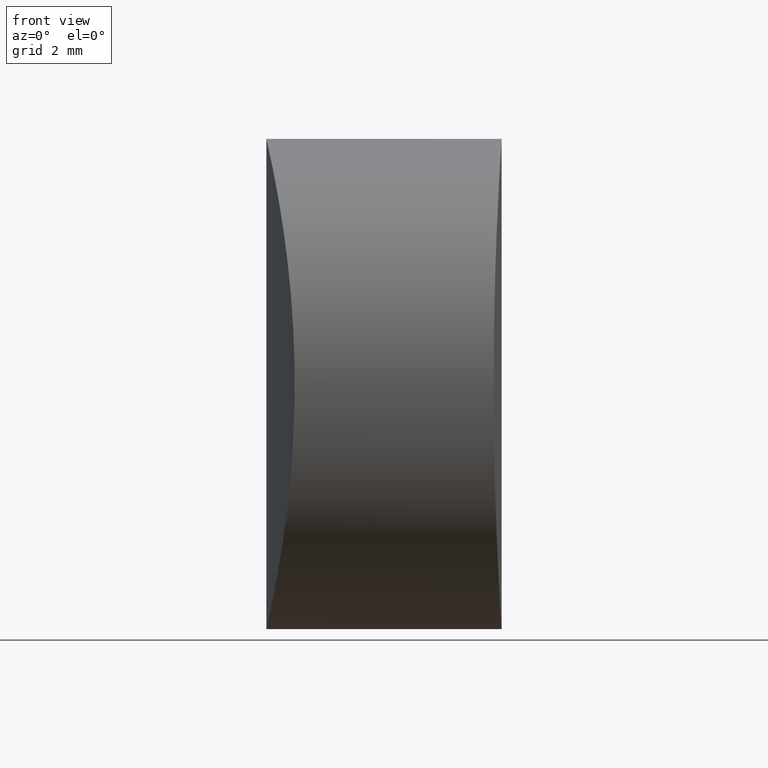
[diagram: clean part render]
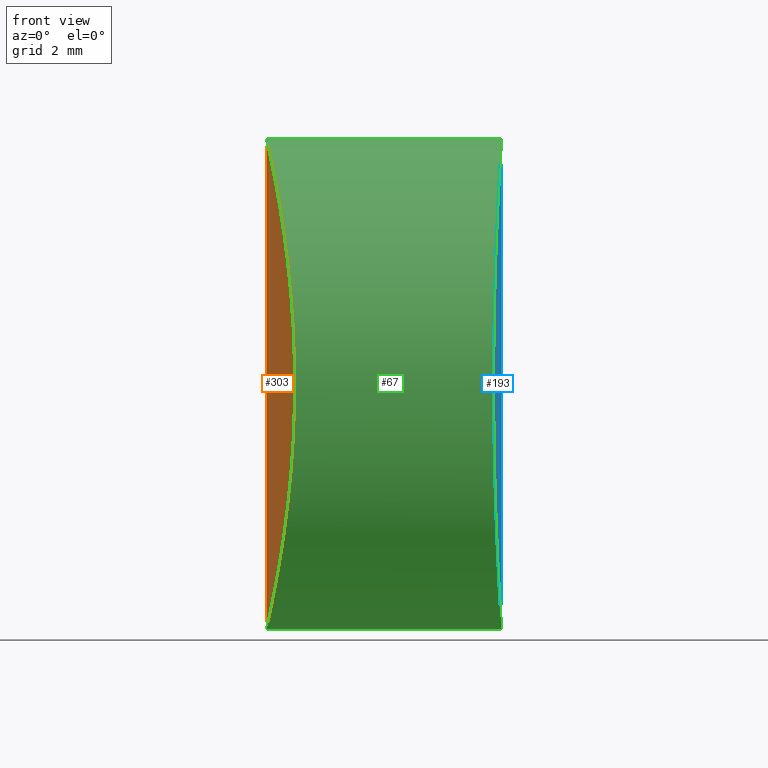
[diagram: same view with three faces highlighted in distinct colors, each labeled with its STEP entity id]
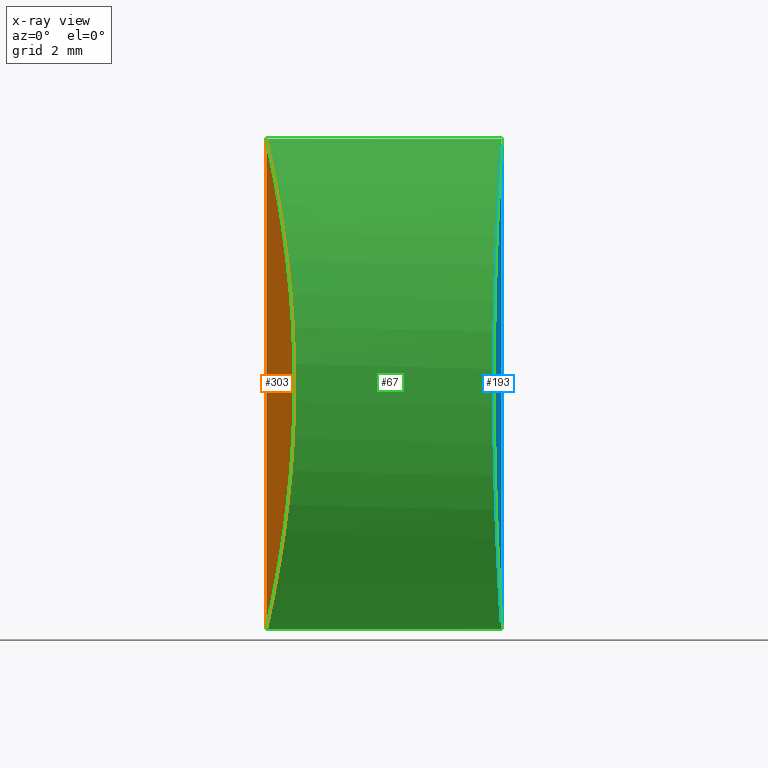
[diagram: x-ray of the same camera — body ghosted, the three highlighted faces saturated]
A machine part, front view with three faces highlighted in distinct colors.
The next image is the same camera in x-ray (body ghosted, the three faces saturated) — at least one of them is partly hidden behind the body in this view.
Their STEP definitions:

[orange] entity #303 — the highlighted cylindrical surface (partial cylindrical patch) has radius 27.4 mm, axis along (-0, -0, -1).
#2 = CARTESIAN_POINT ( 'NONE',  ( 0.3116411693376339165, -4.131036950731554747, 1.542363636356262502 ) ) ;
#30 = CARTESIAN_POINT ( 'NONE',  ( 0.1384884386718820970, -2.777054641262129309, 11.86389697547441280 ) ) ;
#37 = CARTESIAN_POINT ( 'NONE',  ( 0.03615019430483690926, -1.421204401658103356, 0.1603132345661746616 ) ) ;
#40 = CARTESIAN_POINT ( 'NONE',  ( 0.009376720350413049118, -0.8210657172601146803, 0.04075056890858338304 ) ) ;
#47 = CARTESIAN_POINT ( 'NONE',  ( 0.5811138763522566419, -5.615434840411457351, 9.024319395615693296 ) ) ;
#55 = DIRECTION ( 'NONE',  ( -0.000000000000000000, -0.000000000000000000, -1.000000000000000000 ) ) ;
#62 = CARTESIAN_POINT ( 'NONE',  ( 0.6465125408148366670, -5.917319207013137294, 4.227689888689410758 ) ) ;
#66 = CARTESIAN_POINT ( 'NONE',  ( 0.1382062019170031408, -2.774625501623393831, 0.6347149437391172988 ) ) ;
#70 = AXIS2_PLACEMENT_3D ( 'NONE', #337, #111, #131 ) ;
#72 = CARTESIAN_POINT ( 'NONE',  ( 0.7126846332004072027, -6.209194917548074066, 5.426395169123278350 ) ) ;
#82 = CARTESIAN_POINT ( 'NONE',  ( -4.184501590779804551E-15, 0.000000000000000000, 12.50000000000000000 ) ) ;
#85 = CARTESIAN_POINT ( 'NONE',  ( 0.4054701780888513851, -4.705317217891149539, 2.116321698580379884 ) ) ;
#111 = DIRECTION ( 'NONE',  ( -0.000000000000000000, -0.000000000000000000, -1.000000000000000000 ) ) ;
#114 = EDGE_CURVE ( 'NONE', #137, #269, #122, .T. ) ;
#115 = CARTESIAN_POINT ( 'NONE',  ( 0.1775536361305056765, -3.132928845796059569, 0.8265769022523796750 ) ) ;
#122 = B_SPLINE_CURVE_WITH_KNOTS ( 'NONE', 3,
 ( #274, #323, #40, #37, #140, #244, #248, #66, #115, #216, #2, #85, #187, #218, #191, #298, #62, #164, #246, #72, #201, #231, #177, #283, #185, #150, #160, #47, #133, #136, #294, #292, #128, #213, #30, #267, #339, #311, #207, #138, #172, #82 ),
 .UNSPECIFIED., .F., .F.,
 ( 4, 2, 2, 2, 2, 2, 2, 2, 2, 2, 2, 2, 2, 2, 2, 2, 2, 2, 2, 2, 4 ),
 ( 0.009795806338723013831, 0.01102026492403633193, 0.01163249421669299011, 0.01224472350934965002, 0.01346918209466296638, 0.01469364067997628448, 0.01591809926528960084, 0.01714255785060291373, 0.01775478714325957191, 0.01836701643591622662, 0.01959147502122954299, 0.02081593360654285588, 0.02142816289919951406, 0.02204039219185616877, 0.02326485077716947819, 0.02448930936248278761, 0.02571376794779609704, 0.02693822653310940646, 0.02755045582576606117, 0.02816268511842271588, 0.02938714370373602530 ),
 .UNSPECIFIED. ) ;
#125 = EDGE_LOOP ( 'NONE', ( #240, #158 ) ) ;
#128 = CARTESIAN_POINT ( 'NONE',  ( 0.2654822108114512358, -3.820490956223506984, 11.21335405443510602 ) ) ;
#131 = DIRECTION ( 'NONE',  ( -1.000000000000000000, 0.000000000000000000, 0.000000000000000000 ) ) ;
#133 = CARTESIAN_POINT ( 'NONE',  ( 0.5411515278856160460, -5.423603225973796071, 9.382616842158270742 ) ) ;
#136 = CARTESIAN_POINT ( 'NONE',  ( 0.4536428522592524382, -4.970618640289727885, 10.06073622353625652 ) ) ;
#137 = VERTEX_POINT ( 'NONE', #263 ) ;
#138 = CARTESIAN_POINT ( 'NONE',  ( 0.009382662421028536634, -0.8232961281008871479, 12.45923874467907311 ) ) ;
#140 = CARTESIAN_POINT ( 'NONE',  ( 0.04719495323314685381, -1.619526017995706946, 0.2099804113062224420 ) ) ;
#150 = CARTESIAN_POINT ( 'NONE',  ( 0.6472677964665120021, -5.920731362028623046, 8.262371952964885580 ) ) ;
#158 = ORIENTED_EDGE ( 'NONE', *, *, #223, .T. ) ;
#160 = CARTESIAN_POINT ( 'NONE',  ( 0.6318335799774714712, -5.850786857338206914, 8.457409633246081526 ) ) ;
#164 = CARTESIAN_POINT ( 'NONE',  ( 0.6732574735928422704, -6.036968755394013897, 4.619229313976951801 ) ) ;
#172 = CARTESIAN_POINT ( 'NONE',  ( -4.206789132538483423E-15, -0.4141460509851961347, 12.50000000000000355 ) ) ;
#177 = CARTESIAN_POINT ( 'NONE',  ( 0.7127111559373111582, -6.209291371695559114, 7.070753261049171456 ) ) ;
#181 = CARTESIAN_POINT ( 'NONE',  ( -3.469446951953614189E-15, 0.000000000000000000, 12.50000000000000000 ) ) ;
#182 = VECTOR ( 'NONE', #55, 1000.000000000000000 ) ;
#185 = CARTESIAN_POINT ( 'NONE',  ( 0.6739645833130989416, -6.040096946348168849, 7.869237356629506408 ) ) ;
#187 = CARTESIAN_POINT ( 'NONE',  ( 0.4523168166194615480, -4.963519174644203780, 2.429732886834358840 ) ) ;
#191 = CARTESIAN_POINT ( 'NONE',  ( 0.5807977302953476473, -5.613905181690581614, 3.472973952386090080 ) ) ;
#201 = CARTESIAN_POINT ( 'NONE',  ( 0.7223349204684399449, -6.249974872350121835, 5.835505487156897431 ) ) ;
#205 = FACE_OUTER_BOUND ( 'NONE', #125, .T. ) ;
#207 = CARTESIAN_POINT ( 'NONE',  ( 0.03657481214563918642, -1.429648785805302413, 12.33778243081895276 ) ) ;
#213 = CARTESIAN_POINT ( 'NONE',  ( 0.1781624005736298921, -3.138433448208225229, 11.67044925328434424 ) ) ;
#216 = CARTESIAN_POINT ( 'NONE',  ( 0.2641763700242353297, -3.811024154924946394, 1.279602013864278742 ) ) ;
#218 = CARTESIAN_POINT ( 'NONE',  ( 0.5405069973740791456, -5.420496950538773895, 3.111660276165837402 ) ) ;
#223 = EDGE_CURVE ( 'NONE', #269, #137, #309, .T. ) ;
#231 = CARTESIAN_POINT ( 'NONE',  ( 0.7223466888148194487, -6.250025104659654218, 6.663736386252214317 ) ) ;
#240 = ORIENTED_EDGE ( 'NONE', *, *, #114, .T. ) ;
#244 = CARTESIAN_POINT ( 'NONE',  ( 0.07330936728784241685, -2.012656829526802582, 0.3293654359242282892 ) ) ;
#246 = CARTESIAN_POINT ( 'NONE',  ( 0.6848109734009431016, -6.087725439428267826, 4.820111688094120161 ) ) ;
#248 = CARTESIAN_POINT ( 'NONE',  ( 0.08842649433608144871, -2.207700066943129702, 0.3993223769591673911 ) ) ;
#263 = CARTESIAN_POINT ( 'NONE',  ( -4.794358695361155814E-15, -2.552071241603616280E-31, 3.064935224722401656E-16 ) ) ;
#267 = CARTESIAN_POINT ( 'NONE',  ( 0.08893686385253159188, -2.213897388230191332, 12.09829045853030749 ) ) ;
#269 = VERTEX_POINT ( 'NONE', #341 ) ;
#274 = CARTESIAN_POINT ( 'NONE',  ( -4.794358695361155814E-15, -2.552071241603616280E-31, 3.064935224722401656E-16 ) ) ;
#283 = CARTESIAN_POINT ( 'NONE',  ( 0.6852746003841665434, -6.089755177294259525, 7.670911923432183421 ) ) ;
#292 = CARTESIAN_POINT ( 'NONE',  ( 0.3120842509177479962, -4.133930065265925435, 10.95509783975771789 ) ) ;
#294 = CARTESIAN_POINT ( 'NONE',  ( 0.4059196538580759905, -4.707885266223270193, 10.38075535299298480 ) ) ;
#298 = CARTESIAN_POINT ( 'NONE',  ( 0.6312815837660793461, -5.848256132854045219, 4.036015702614473177 ) ) ;
#303 = ADVANCED_FACE ( 'NONE', ( #205 ), #312, .T. ) ;
#309 = LINE ( 'NONE', #181, #182 ) ;
#311 = CARTESIAN_POINT ( 'NONE',  ( 0.04785635936420622877, -1.630567444252991161, 12.28702495686388296 ) ) ;
#312 = CYLINDRICAL_SURFACE ( 'NONE', #70, 27.40000000000000568 ) ;
#323 = CARTESIAN_POINT ( 'NONE',  ( -4.797912250603577483E-15, -0.4141244359800711483, -5.717472393966527289E-17 ) ) ;
#337 = CARTESIAN_POINT ( 'NONE',  ( 27.40000000000000213, 0.000000000000000000, 12.50000000000000000 ) ) ;
#339 = CARTESIAN_POINT ( 'NONE',  ( 0.07401813108629744231, -2.022183678113939287, 12.16736374511696361 ) ) ;
#341 = CARTESIAN_POINT ( 'NONE',  ( -4.184501590779804551E-15, 0.000000000000000000, 12.50000000000000000 ) ) ;

[blue] entity #193 — the highlighted cylindrical surface (partial cylindrical patch) has radius 96 mm, axis along (-0, -0, -1).
#8 = CARTESIAN_POINT ( 'NONE',  ( 5.911567105807118416, 4.129710508305659111, 1.541077639020869805 ) ) ;
#13 = AXIS2_PLACEMENT_3D ( 'NONE', #57, #234, #284 ) ;
#15 = CARTESIAN_POINT ( 'NONE',  ( 6.000000000000032863, -5.204170427930421283E-15, 12.50000000000000000 ) ) ;
#16 = CARTESIAN_POINT ( 'NONE',  ( 6.000000000000032863, -4.438766178463325818E-15, 0.000000000000000000 ) ) ;
#18 = CARTESIAN_POINT ( 'NONE',  ( 5.836178944746621688, -5.606794147255385496, 9.019141125846413587 ) ) ;
#19 = CARTESIAN_POINT ( 'NONE',  ( 5.987035242229683085, -1.628528162335888485, 0.2018665620749761913 ) ) ;
#20 = CARTESIAN_POINT ( 'NONE',  ( 5.806612813290890074, 6.090527116705958477, 7.667533264475713928 ) ) ;
#22 = CARTESIAN_POINT ( 'NONE',  ( 5.817174602415963847, -5.922212247244167393, 4.242029252911016179 ) ) ;
#23 = CARTESIAN_POINT ( 'NONE',  ( 5.924625625390090633, -3.818741430251576752, 1.285288746088208089 ) ) ;
#27 = CARTESIAN_POINT ( 'NONE',  ( 5.884874420424372587, -4.708922839733584276, 2.120290177468396653 ) ) ;
#43 = CARTESIAN_POINT ( 'NONE',  ( 6.000000000000032863, -5.204170427930421283E-15, 12.50000000000000000 ) ) ;
#49 = CARTESIAN_POINT ( 'NONE',  ( 5.821475028554874420, 5.852442620526291606, 8.453025596376225081 ) ) ;
#50 = EDGE_CURVE ( 'NONE', #265, #199, #84, .T. ) ;
#51 = CARTESIAN_POINT ( 'NONE',  ( 5.979198856566736886, -2.007962246959814401, 12.17221515464864012 ) ) ;
#53 = CARTESIAN_POINT ( 'NONE',  ( 5.836178944746623465, 5.606794147255378391, 3.480858874153593963 ) ) ;
#57 = CARTESIAN_POINT ( 'NONE',  ( -90.00000000000000000, 0.000000000000000000, 12.50000000000000000 ) ) ;
#59 = B_SPLINE_CURVE_WITH_KNOTS ( 'NONE', 3,
 ( #15, #228, #331, #334, #237, #51, #79, #101, #203, #73, #104, #152, #174, #259, #110, #18, #336, #320, #130, #314, #76, #288, #156, #154, #261, #22, #210, #316, #229, #264, #27, #149, #23, #127, #321, #102, #202, #232, #19, #235, #83, #239 ),
 .UNSPECIFIED., .F., .F.,
 ( 4, 2, 2, 2, 2, 2, 2, 2, 2, 2, 2, 2, 2, 2, 2, 2, 2, 2, 2, 2, 4 ),
 ( 0.01953217568338413979, 0.02075294466551232814, 0.02136332915657642578, 0.02197371364764051649, 0.02319448262976870484, 0.02441525161189689319, 0.02563602059402507807, 0.02624640508508917225, 0.02685678957615326989, 0.02807755855828145825, 0.02929832754040965354, 0.03051909652253784883, 0.03112948101360194647, 0.03173986550466604412, 0.03296063448679423247, 0.03418140346892242082, 0.03540217245105060917, 0.03601255694211470681, 0.03662294143317879752, 0.03784371041530699281, 0.03906447939743518116 ),
 .UNSPECIFIED. ) ;
#60 = ORIENTED_EDGE ( 'NONE', *, *, #50, .T. ) ;
#68 = CARTESIAN_POINT ( 'NONE',  ( 5.986607244030440533, 1.615473711900098808, 0.2089082601465505062 ) ) ;
#71 = CARTESIAN_POINT ( 'NONE',  ( 5.796333507372480653, 6.249998923542263718, 6.662802383870022993 ) ) ;
#73 = CARTESIAN_POINT ( 'NONE',  ( 5.925037275768167078, -3.808234963805516848, 11.22256866007617404 ) ) ;
#76 = CARTESIAN_POINT ( 'NONE',  ( 5.796333366913489549, -6.250001076415270695, 6.662769787189287030 ) ) ;
#77 = CARTESIAN_POINT ( 'NONE',  ( 5.949143905229992590, 3.129583509520057927, 11.66387015364975177 ) ) ;
#79 = CARTESIAN_POINT ( 'NONE',  ( 5.974905582907696022, -2.203018005822348080, 12.10244550841075650 ) ) ;
#83 = CARTESIAN_POINT ( 'NONE',  ( 6.000000000000033751, -0.4127902963935412006, 9.317362419797287706E-17 ) ) ;
#84 = B_SPLINE_CURVE_WITH_KNOTS ( 'NONE', 3,
 ( #147, #176, #308, #333, #68, #304, #93, #254, #197, #106, #8, #287, #196, #258, #260, #53, #124, #121, #103, #209, #233, #71, #335, #20, #206, #313, #49, #132, #222, #225, #305, #315, #129, #178, #77, #290, #167, #95, #169, #280, #279, #43 ),
 .UNSPECIFIED., .F., .F.,
 ( 4, 2, 2, 2, 2, 2, 2, 2, 2, 2, 2, 2, 2, 2, 2, 2, 2, 2, 2, 2, 4 ),
 ( 0.000000000000000000, 0.001220760980211511122, 0.001831141470317267225, 0.002441521960423023111, 0.003662282940634532715, 0.004883043920846042753, 0.006103804901057553224, 0.006714185391163309327, 0.007324565881269064563, 0.008545326861480576769, 0.009766087841692087240, 0.01098684882190359771, 0.01159722931200935642, 0.01220760980211511165, 0.01342837078232661865, 0.01464913176253812392, 0.01586989274274963266, 0.01648027323285538442, 0.01709065372296113619, 0.01831141470317263625, 0.01953217568338413979 ),
 .UNSPECIFIED. ) ;
#87 = ORIENTED_EDGE ( 'NONE', *, *, #227, .T. ) ;
#93 = CARTESIAN_POINT ( 'NONE',  ( 5.974905582907695134, 2.203018005822336978, 0.3975544915892444964 ) ) ;
#95 = CARTESIAN_POINT ( 'NONE',  ( 5.979448297765532772, 2.021566305979889400, 12.17800582869768178 ) ) ;
#100 = CARTESIAN_POINT ( 'NONE',  ( 6.000000000000032863, -5.204170427930421283E-15, 12.50000000000000000 ) ) ;
#101 = CARTESIAN_POINT ( 'NONE',  ( 5.960763360669401933, -2.770388991762482878, 11.86739013118188346 ) ) ;
#102 = CARTESIAN_POINT ( 'NONE',  ( 5.960222631026613094, -2.769148189137305316, 0.6432093591576675262 ) ) ;
#103 = CARTESIAN_POINT ( 'NONE',  ( 5.809324090560597398, 6.048136398072538888, 4.621482525096241467 ) ) ;
#104 = CARTESIAN_POINT ( 'NONE',  ( 5.911567105807118416, -4.129710508305667993, 10.95892236097913397 ) ) ;
#106 = CARTESIAN_POINT ( 'NONE',  ( 5.925037275768164413, 3.808234963805503082, 1.277431339923827291 ) ) ;
#107 = FACE_OUTER_BOUND ( 'NONE', #134, .T. ) ;
#110 = CARTESIAN_POINT ( 'NONE',  ( 5.847270737039256261, -5.413873622452944012, 9.379577540924559642 ) ) ;
#121 = CARTESIAN_POINT ( 'NONE',  ( 5.816925134056868174, 5.928009089340775084, 4.228443051414411791 ) ) ;
#124 = CARTESIAN_POINT ( 'NONE',  ( 5.831022604608366855, 5.693963033971735754, 3.664916629452011243 ) ) ;
#127 = CARTESIAN_POINT ( 'NONE',  ( 5.943178669587201313, -3.306903936655295695, 0.9425479427324706672 ) ) ;
#129 = CARTESIAN_POINT ( 'NONE',  ( 5.924625625390091521, 3.818741430251566094, 11.21471125391179413 ) ) ;
#130 = CARTESIAN_POINT ( 'NONE',  ( 5.809324090560596510, -6.048136398072547770, 7.878517474903756757 ) ) ;
#132 = CARTESIAN_POINT ( 'NONE',  ( 5.835638474226827022, 5.617387589916582158, 9.020393886077801682 ) ) ;
#134 = EDGE_LOOP ( 'NONE', ( #87, #60 ) ) ;
#147 = CARTESIAN_POINT ( 'NONE',  ( 6.000000000000032863, -4.438766178463325818E-15, 0.000000000000000000 ) ) ;
#149 = CARTESIAN_POINT ( 'NONE',  ( 5.911424642850639621, -4.133003739400670007, 1.543967953893780276 ) ) ;
#152 = CARTESIAN_POINT ( 'NONE',  ( 5.885016830392030052, -4.706034531278883826, 10.38300104942525870 ) ) ;
#154 = CARTESIAN_POINT ( 'NONE',  ( 5.806612813290883857, -6.090527116705967359, 4.832466735524288737 ) ) ;
#156 = CARTESIAN_POINT ( 'NONE',  ( 5.798999773165139260, -6.209505593986322403, 5.431327453033993002 ) ) ;
#167 = CARTESIAN_POINT ( 'NONE',  ( 5.965371937166968230, 2.585090990553882584, 11.94395955633633655 ) ) ;
#169 = CARTESIAN_POINT ( 'NONE',  ( 5.987035242229682197, 1.628528162335880713, 12.29813343792502600 ) ) ;
#174 = CARTESIAN_POINT ( 'NONE',  ( 5.871810116764509146, -4.964714265286644057, 10.06873762798265659 ) ) ;
#176 = CARTESIAN_POINT ( 'NONE',  ( 6.000000000000032863, 0.4127875906288794861, 3.811648262644350293E-17 ) ) ;
#178 = CARTESIAN_POINT ( 'NONE',  ( 5.943178669587195984, 3.306903936655284149, 11.55745205726753078 ) ) ;
#193 = ADVANCED_FACE ( 'NONE', ( #107 ), #243, .T. ) ;
#196 = CARTESIAN_POINT ( 'NONE',  ( 5.871810116764510035, 4.964714265286636952, 2.431262372017350071 ) ) ;
#197 = CARTESIAN_POINT ( 'NONE',  ( 5.949589200328775362, 3.129179155180217276, 0.8243820228928684379 ) ) ;
#199 = VERTEX_POINT ( 'NONE', #100 ) ;
#202 = CARTESIAN_POINT ( 'NONE',  ( 5.965371937166970007, -2.585090990553890578, 0.5560404436636666725 ) ) ;
#203 = CARTESIAN_POINT ( 'NONE',  ( 5.949589200328774474, -3.129179155180229266, 11.67561797710713023 ) ) ;
#206 = CARTESIAN_POINT ( 'NONE',  ( 5.809753105704046128, 6.041089017330381949, 7.865483799752884586 ) ) ;
#209 = CARTESIAN_POINT ( 'NONE',  ( 5.799000971098884349, 6.209504772456537758, 5.428980185016071935 ) ) ;
#210 = CARTESIAN_POINT ( 'NONE',  ( 5.821475028554870867, -5.852442620526301376, 4.046974403623774030 ) ) ;
#222 = CARTESIAN_POINT ( 'NONE',  ( 5.846826527566751253, 5.425615968170429682, 9.379182439852677078 ) ) ;
#225 = CARTESIAN_POINT ( 'NONE',  ( 5.871398397257435953, 4.972568088410991294, 10.05823554708279133 ) ) ;
#227 = EDGE_CURVE ( 'NONE', #199, #265, #59, .T. ) ;
#228 = CARTESIAN_POINT ( 'NONE',  ( 6.000000000000031974, -0.4127875906288890895, 12.49999999999999822 ) ) ;
#229 = CARTESIAN_POINT ( 'NONE',  ( 5.846826527566754805, -5.425615968170440340, 3.120817560147326475 ) ) ;
#232 = CARTESIAN_POINT ( 'NONE',  ( 5.979448297765534548, -2.021566305979894729, 0.3219941713023179997 ) ) ;
#233 = CARTESIAN_POINT ( 'NONE',  ( 5.796333366913491325, 6.250001076415261814, 5.837230212810717411 ) ) ;
#234 = DIRECTION ( 'NONE',  ( -0.000000000000000000, -0.000000000000000000, -1.000000000000000000 ) ) ;
#235 = CARTESIAN_POINT ( 'NONE',  ( 5.997338208213556676, -0.8210331944726780851, 0.04049707689561887064 ) ) ;
#237 = CARTESIAN_POINT ( 'NONE',  ( 5.986607244030440533, -1.615473711900106579, 12.29109173985344938 ) ) ;
#239 = CARTESIAN_POINT ( 'NONE',  ( 6.000000000000032863, -4.438766178463325818E-15, 0.000000000000000000 ) ) ;
#243 = CYLINDRICAL_SURFACE ( 'NONE', #13, 96.00000000000002842 ) ;
#254 = CARTESIAN_POINT ( 'NONE',  ( 5.960763360669400157, 2.770388991762471775, 0.6326098688181184260 ) ) ;
#258 = CARTESIAN_POINT ( 'NONE',  ( 5.853242027680242821, 5.307455462194799800, 2.943101495563196668 ) ) ;
#259 = CARTESIAN_POINT ( 'NONE',  ( 5.853242027680241044, -5.307455462194806906, 9.556898504436805553 ) ) ;
#260 = CARTESIAN_POINT ( 'NONE',  ( 5.847270737039256261, 5.413873622452935130, 3.120422459075444799 ) ) ;
#261 = CARTESIAN_POINT ( 'NONE',  ( 5.809753105704043463, -6.041089017330388167, 4.634516200247111861 ) ) ;
#264 = CARTESIAN_POINT ( 'NONE',  ( 5.871398397257441282, -4.972568088411003728, 2.441764452917210892 ) ) ;
#265 = VERTEX_POINT ( 'NONE', #16 ) ;
#279 = CARTESIAN_POINT ( 'NONE',  ( 6.000000000000031974, 0.4127848848819660188, 12.49999999999999645 ) ) ;
#280 = CARTESIAN_POINT ( 'NONE',  ( 5.997338208213556676, 0.8210331944726709796, 12.45950292310438279 ) ) ;
#284 = DIRECTION ( 'NONE',  ( -1.000000000000000000, 0.000000000000000000, 0.000000000000000000 ) ) ;
#287 = CARTESIAN_POINT ( 'NONE',  ( 5.885016830392030052, 4.706034531278874056, 2.116998950574742633 ) ) ;
#288 = CARTESIAN_POINT ( 'NONE',  ( 5.796333507372478877, -6.249998923542270823, 5.837197616129978783 ) ) ;
#290 = CARTESIAN_POINT ( 'NONE',  ( 5.960222631026611317, 2.769148189137295546, 11.85679064084233403 ) ) ;
#304 = CARTESIAN_POINT ( 'NONE',  ( 5.979198856566738662, 2.007962246959806851, 0.3277848453513630966 ) ) ;
#305 = CARTESIAN_POINT ( 'NONE',  ( 5.884874420424371699, 4.708922839733576282, 10.37970982253160201 ) ) ;
#308 = CARTESIAN_POINT ( 'NONE',  ( 5.997339634076558568, 0.8186593033643769779, 0.04049256479721155544 ) ) ;
#313 = CARTESIAN_POINT ( 'NONE',  ( 5.817174602415966511, 5.922212247244154959, 8.257970747088984709 ) ) ;
#314 = CARTESIAN_POINT ( 'NONE',  ( 5.799000971098883461, -6.209504772456546640, 7.071019814983928953 ) ) ;
#315 = CARTESIAN_POINT ( 'NONE',  ( 5.911424642850639621, 4.133003739400661125, 10.95603204610621795 ) ) ;
#316 = CARTESIAN_POINT ( 'NONE',  ( 5.835638474226824357, -5.617387589916591928, 3.479606113922200539 ) ) ;
#320 = CARTESIAN_POINT ( 'NONE',  ( 5.816925134056869950, -5.928009089340786630, 8.271556948585585545 ) ) ;
#321 = CARTESIAN_POINT ( 'NONE',  ( 5.949143905229994367, -3.129583509520069917, 0.8361298463502433442 ) ) ;
#331 = CARTESIAN_POINT ( 'NONE',  ( 5.997339634076555903, -0.8186593033643846384, 12.45950743520278614 ) ) ;
#333 = CARTESIAN_POINT ( 'NONE',  ( 5.989741562635338745, 1.417522383347145976, 0.1594703265302315487 ) ) ;
#334 = CARTESIAN_POINT ( 'NONE',  ( 5.989741562635338745, -1.417522383347154191, 12.34052967346976892 ) ) ;
#335 = CARTESIAN_POINT ( 'NONE',  ( 5.798999773165147253, 6.209505593986315297, 7.068672546966005221 ) ) ;
#336 = CARTESIAN_POINT ( 'NONE',  ( 5.831022604608365967, -5.693963033971745524, 8.835083370547991422 ) ) ;

[green] entity #67 — the highlighted cylindrical surface (partial cylindrical patch) has radius 6.25 mm, axis along (-1, 0, 0).
#2 = CARTESIAN_POINT ( 'NONE',  ( 0.3116411693376339165, -4.131036950731554747, 1.542363636356262502 ) ) ;
#9 = DIRECTION ( 'NONE',  ( 0.000000000000000000, 0.000000000000000000, 1.000000000000000000 ) ) ;
#11 = FACE_OUTER_BOUND ( 'NONE', #56, .T. ) ;
#15 = CARTESIAN_POINT ( 'NONE',  ( 6.000000000000032863, -5.204170427930421283E-15, 12.50000000000000000 ) ) ;
#16 = CARTESIAN_POINT ( 'NONE',  ( 6.000000000000032863, -4.438766178463325818E-15, 0.000000000000000000 ) ) ;
#18 = CARTESIAN_POINT ( 'NONE',  ( 5.836178944746621688, -5.606794147255385496, 9.019141125846413587 ) ) ;
#19 = CARTESIAN_POINT ( 'NONE',  ( 5.987035242229683085, -1.628528162335888485, 0.2018665620749761913 ) ) ;
#22 = CARTESIAN_POINT ( 'NONE',  ( 5.817174602415963847, -5.922212247244167393, 4.242029252911016179 ) ) ;
#23 = CARTESIAN_POINT ( 'NONE',  ( 5.924625625390090633, -3.818741430251576752, 1.285288746088208089 ) ) ;
#26 = CARTESIAN_POINT ( 'NONE',  ( 12.50000000000000000, -4.438766178463325818E-15, 0.000000000000000000 ) ) ;
#27 = CARTESIAN_POINT ( 'NONE',  ( 5.884874420424372587, -4.708922839733584276, 2.120290177468396653 ) ) ;
#30 = CARTESIAN_POINT ( 'NONE',  ( 0.1384884386718820970, -2.777054641262129309, 11.86389697547441280 ) ) ;
#32 = ORIENTED_EDGE ( 'NONE', *, *, #227, .F. ) ;
#37 = CARTESIAN_POINT ( 'NONE',  ( 0.03615019430483690926, -1.421204401658103356, 0.1603132345661746616 ) ) ;
#40 = CARTESIAN_POINT ( 'NONE',  ( 0.009376720350413049118, -0.8210657172601146803, 0.04075056890858338304 ) ) ;
#46 = DIRECTION ( 'NONE',  ( -1.000000000000000000, 0.000000000000000000, 0.000000000000000000 ) ) ;
#47 = CARTESIAN_POINT ( 'NONE',  ( 0.5811138763522566419, -5.615434840411457351, 9.024319395615693296 ) ) ;
#51 = CARTESIAN_POINT ( 'NONE',  ( 5.979198856566736886, -2.007962246959814401, 12.17221515464864012 ) ) ;
#56 = EDGE_LOOP ( 'NONE', ( #69, #32, #230, #183 ) ) ;
#59 = B_SPLINE_CURVE_WITH_KNOTS ( 'NONE', 3,
 ( #15, #228, #331, #334, #237, #51, #79, #101, #203, #73, #104, #152, #174, #259, #110, #18, #336, #320, #130, #314, #76, #288, #156, #154, #261, #22, #210, #316, #229, #264, #27, #149, #23, #127, #321, #102, #202, #232, #19, #235, #83, #239 ),
 .UNSPECIFIED., .F., .F.,
 ( 4, 2, 2, 2, 2, 2, 2, 2, 2, 2, 2, 2, 2, 2, 2, 2, 2, 2, 2, 2, 4 ),
 ( 0.01953217568338413979, 0.02075294466551232814, 0.02136332915657642578, 0.02197371364764051649, 0.02319448262976870484, 0.02441525161189689319, 0.02563602059402507807, 0.02624640508508917225, 0.02685678957615326989, 0.02807755855828145825, 0.02929832754040965354, 0.03051909652253784883, 0.03112948101360194647, 0.03173986550466604412, 0.03296063448679423247, 0.03418140346892242082, 0.03540217245105060917, 0.03601255694211470681, 0.03662294143317879752, 0.03784371041530699281, 0.03906447939743518116 ),
 .UNSPECIFIED. ) ;
#62 = CARTESIAN_POINT ( 'NONE',  ( 0.6465125408148366670, -5.917319207013137294, 4.227689888689410758 ) ) ;
#66 = CARTESIAN_POINT ( 'NONE',  ( 0.1382062019170031408, -2.774625501623393831, 0.6347149437391172988 ) ) ;
#67 = ADVANCED_FACE ( 'NONE', ( #11 ), #329, .T. ) ;
#69 = ORIENTED_EDGE ( 'NONE', *, *, #200, .F. ) ;
#72 = CARTESIAN_POINT ( 'NONE',  ( 0.7126846332004072027, -6.209194917548074066, 5.426395169123278350 ) ) ;
#73 = CARTESIAN_POINT ( 'NONE',  ( 5.925037275768167078, -3.808234963805516848, 11.22256866007617404 ) ) ;
#74 = EDGE_CURVE ( 'NONE', #199, #269, #170, .T. ) ;
#76 = CARTESIAN_POINT ( 'NONE',  ( 5.796333366913489549, -6.250001076415270695, 6.662769787189287030 ) ) ;
#79 = CARTESIAN_POINT ( 'NONE',  ( 5.974905582907696022, -2.203018005822348080, 12.10244550841075650 ) ) ;
#82 = CARTESIAN_POINT ( 'NONE',  ( -4.184501590779804551E-15, 0.000000000000000000, 12.50000000000000000 ) ) ;
#83 = CARTESIAN_POINT ( 'NONE',  ( 6.000000000000033751, -0.4127902963935412006, 9.317362419797287706E-17 ) ) ;
#85 = CARTESIAN_POINT ( 'NONE',  ( 0.4054701780888513851, -4.705317217891149539, 2.116321698580379884 ) ) ;
#98 = CARTESIAN_POINT ( 'NONE',  ( 12.50000000000000000, -5.204170427930421283E-15, 6.250000000000000000 ) ) ;
#100 = CARTESIAN_POINT ( 'NONE',  ( 6.000000000000032863, -5.204170427930421283E-15, 12.50000000000000000 ) ) ;
#101 = CARTESIAN_POINT ( 'NONE',  ( 5.960763360669401933, -2.770388991762482878, 11.86739013118188346 ) ) ;
#102 = CARTESIAN_POINT ( 'NONE',  ( 5.960222631026613094, -2.769148189137305316, 0.6432093591576675262 ) ) ;
#104 = CARTESIAN_POINT ( 'NONE',  ( 5.911567105807118416, -4.129710508305667993, 10.95892236097913397 ) ) ;
#110 = CARTESIAN_POINT ( 'NONE',  ( 5.847270737039256261, -5.413873622452944012, 9.379577540924559642 ) ) ;
#114 = EDGE_CURVE ( 'NONE', #137, #269, #122, .T. ) ;
#115 = CARTESIAN_POINT ( 'NONE',  ( 0.1775536361305056765, -3.132928845796059569, 0.8265769022523796750 ) ) ;
#122 = B_SPLINE_CURVE_WITH_KNOTS ( 'NONE', 3,
 ( #274, #323, #40, #37, #140, #244, #248, #66, #115, #216, #2, #85, #187, #218, #191, #298, #62, #164, #246, #72, #201, #231, #177, #283, #185, #150, #160, #47, #133, #136, #294, #292, #128, #213, #30, #267, #339, #311, #207, #138, #172, #82 ),
 .UNSPECIFIED., .F., .F.,
 ( 4, 2, 2, 2, 2, 2, 2, 2, 2, 2, 2, 2, 2, 2, 2, 2, 2, 2, 2, 2, 4 ),
 ( 0.009795806338723013831, 0.01102026492403633193, 0.01163249421669299011, 0.01224472350934965002, 0.01346918209466296638, 0.01469364067997628448, 0.01591809926528960084, 0.01714255785060291373, 0.01775478714325957191, 0.01836701643591622662, 0.01959147502122954299, 0.02081593360654285588, 0.02142816289919951406, 0.02204039219185616877, 0.02326485077716947819, 0.02448930936248278761, 0.02571376794779609704, 0.02693822653310940646, 0.02755045582576606117, 0.02816268511842271588, 0.02938714370373602530 ),
 .UNSPECIFIED. ) ;
#127 = CARTESIAN_POINT ( 'NONE',  ( 5.943178669587201313, -3.306903936655295695, 0.9425479427324706672 ) ) ;
#128 = CARTESIAN_POINT ( 'NONE',  ( 0.2654822108114512358, -3.820490956223506984, 11.21335405443510602 ) ) ;
#130 = CARTESIAN_POINT ( 'NONE',  ( 5.809324090560596510, -6.048136398072547770, 7.878517474903756757 ) ) ;
#133 = CARTESIAN_POINT ( 'NONE',  ( 0.5411515278856160460, -5.423603225973796071, 9.382616842158270742 ) ) ;
#136 = CARTESIAN_POINT ( 'NONE',  ( 0.4536428522592524382, -4.970618640289727885, 10.06073622353625652 ) ) ;
#137 = VERTEX_POINT ( 'NONE', #263 ) ;
#138 = CARTESIAN_POINT ( 'NONE',  ( 0.009382662421028536634, -0.8232961281008871479, 12.45923874467907311 ) ) ;
#140 = CARTESIAN_POINT ( 'NONE',  ( 0.04719495323314685381, -1.619526017995706946, 0.2099804113062224420 ) ) ;
#144 = VECTOR ( 'NONE', #328, 1000.000000000000000 ) ;
#146 = DIRECTION ( 'NONE',  ( -1.000000000000000000, 0.000000000000000000, 0.000000000000000000 ) ) ;
#149 = CARTESIAN_POINT ( 'NONE',  ( 5.911424642850639621, -4.133003739400670007, 1.543967953893780276 ) ) ;
#150 = CARTESIAN_POINT ( 'NONE',  ( 0.6472677964665120021, -5.920731362028623046, 8.262371952964885580 ) ) ;
#152 = CARTESIAN_POINT ( 'NONE',  ( 5.885016830392030052, -4.706034531278883826, 10.38300104942525870 ) ) ;
#154 = CARTESIAN_POINT ( 'NONE',  ( 5.806612813290883857, -6.090527116705967359, 4.832466735524288737 ) ) ;
#156 = CARTESIAN_POINT ( 'NONE',  ( 5.798999773165139260, -6.209505593986322403, 5.431327453033993002 ) ) ;
#160 = CARTESIAN_POINT ( 'NONE',  ( 0.6318335799774714712, -5.850786857338206914, 8.457409633246081526 ) ) ;
#164 = CARTESIAN_POINT ( 'NONE',  ( 0.6732574735928422704, -6.036968755394013897, 4.619229313976951801 ) ) ;
#170 = LINE ( 'NONE', #224, #144 ) ;
#172 = CARTESIAN_POINT ( 'NONE',  ( -4.206789132538483423E-15, -0.4141460509851961347, 12.50000000000000355 ) ) ;
#174 = CARTESIAN_POINT ( 'NONE',  ( 5.871810116764509146, -4.964714265286644057, 10.06873762798265659 ) ) ;
#177 = CARTESIAN_POINT ( 'NONE',  ( 0.7127111559373111582, -6.209291371695559114, 7.070753261049171456 ) ) ;
#183 = ORIENTED_EDGE ( 'NONE', *, *, #114, .F. ) ;
#185 = CARTESIAN_POINT ( 'NONE',  ( 0.6739645833130989416, -6.040096946348168849, 7.869237356629506408 ) ) ;
#187 = CARTESIAN_POINT ( 'NONE',  ( 0.4523168166194615480, -4.963519174644203780, 2.429732886834358840 ) ) ;
#191 = CARTESIAN_POINT ( 'NONE',  ( 0.5807977302953476473, -5.613905181690581614, 3.472973952386090080 ) ) ;
#199 = VERTEX_POINT ( 'NONE', #100 ) ;
#200 = EDGE_CURVE ( 'NONE', #265, #137, #256, .T. ) ;
#201 = CARTESIAN_POINT ( 'NONE',  ( 0.7223349204684399449, -6.249974872350121835, 5.835505487156897431 ) ) ;
#202 = CARTESIAN_POINT ( 'NONE',  ( 5.965371937166970007, -2.585090990553890578, 0.5560404436636666725 ) ) ;
#203 = CARTESIAN_POINT ( 'NONE',  ( 5.949589200328774474, -3.129179155180229266, 11.67561797710713023 ) ) ;
#207 = CARTESIAN_POINT ( 'NONE',  ( 0.03657481214563918642, -1.429648785805302413, 12.33778243081895276 ) ) ;
#210 = CARTESIAN_POINT ( 'NONE',  ( 5.821475028554870867, -5.852442620526301376, 4.046974403623774030 ) ) ;
#213 = CARTESIAN_POINT ( 'NONE',  ( 0.1781624005736298921, -3.138433448208225229, 11.67044925328434424 ) ) ;
#216 = CARTESIAN_POINT ( 'NONE',  ( 0.2641763700242353297, -3.811024154924946394, 1.279602013864278742 ) ) ;
#218 = CARTESIAN_POINT ( 'NONE',  ( 0.5405069973740791456, -5.420496950538773895, 3.111660276165837402 ) ) ;
#221 = VECTOR ( 'NONE', #46, 1000.000000000000000 ) ;
#224 = CARTESIAN_POINT ( 'NONE',  ( 12.50000000000000000, -5.204170427930421283E-15, 12.50000000000000000 ) ) ;
#227 = EDGE_CURVE ( 'NONE', #199, #265, #59, .T. ) ;
#228 = CARTESIAN_POINT ( 'NONE',  ( 6.000000000000031974, -0.4127875906288890895, 12.49999999999999822 ) ) ;
#229 = CARTESIAN_POINT ( 'NONE',  ( 5.846826527566754805, -5.425615968170440340, 3.120817560147326475 ) ) ;
#230 = ORIENTED_EDGE ( 'NONE', *, *, #74, .T. ) ;
#231 = CARTESIAN_POINT ( 'NONE',  ( 0.7223466888148194487, -6.250025104659654218, 6.663736386252214317 ) ) ;
#232 = CARTESIAN_POINT ( 'NONE',  ( 5.979448297765534548, -2.021566305979894729, 0.3219941713023179997 ) ) ;
#235 = CARTESIAN_POINT ( 'NONE',  ( 5.997338208213556676, -0.8210331944726780851, 0.04049707689561887064 ) ) ;
#237 = CARTESIAN_POINT ( 'NONE',  ( 5.986607244030440533, -1.615473711900106579, 12.29109173985344938 ) ) ;
#239 = CARTESIAN_POINT ( 'NONE',  ( 6.000000000000032863, -4.438766178463325818E-15, 0.000000000000000000 ) ) ;
#244 = CARTESIAN_POINT ( 'NONE',  ( 0.07330936728784241685, -2.012656829526802582, 0.3293654359242282892 ) ) ;
#246 = CARTESIAN_POINT ( 'NONE',  ( 0.6848109734009431016, -6.087725439428267826, 4.820111688094120161 ) ) ;
#248 = CARTESIAN_POINT ( 'NONE',  ( 0.08842649433608144871, -2.207700066943129702, 0.3993223769591673911 ) ) ;
#256 = LINE ( 'NONE', #26, #221 ) ;
#259 = CARTESIAN_POINT ( 'NONE',  ( 5.853242027680241044, -5.307455462194806906, 9.556898504436805553 ) ) ;
#261 = CARTESIAN_POINT ( 'NONE',  ( 5.809753105704043463, -6.041089017330388167, 4.634516200247111861 ) ) ;
#263 = CARTESIAN_POINT ( 'NONE',  ( -4.794358695361155814E-15, -2.552071241603616280E-31, 3.064935224722401656E-16 ) ) ;
#264 = CARTESIAN_POINT ( 'NONE',  ( 5.871398397257441282, -4.972568088411003728, 2.441764452917210892 ) ) ;
#265 = VERTEX_POINT ( 'NONE', #16 ) ;
#267 = CARTESIAN_POINT ( 'NONE',  ( 0.08893686385253159188, -2.213897388230191332, 12.09829045853030749 ) ) ;
#269 = VERTEX_POINT ( 'NONE', #341 ) ;
#274 = CARTESIAN_POINT ( 'NONE',  ( -4.794358695361155814E-15, -2.552071241603616280E-31, 3.064935224722401656E-16 ) ) ;
#283 = CARTESIAN_POINT ( 'NONE',  ( 0.6852746003841665434, -6.089755177294259525, 7.670911923432183421 ) ) ;
#288 = CARTESIAN_POINT ( 'NONE',  ( 5.796333507372478877, -6.249998923542270823, 5.837197616129978783 ) ) ;
#292 = CARTESIAN_POINT ( 'NONE',  ( 0.3120842509177479962, -4.133930065265925435, 10.95509783975771789 ) ) ;
#294 = CARTESIAN_POINT ( 'NONE',  ( 0.4059196538580759905, -4.707885266223270193, 10.38075535299298480 ) ) ;
#298 = CARTESIAN_POINT ( 'NONE',  ( 0.6312815837660793461, -5.848256132854045219, 4.036015702614473177 ) ) ;
#307 = AXIS2_PLACEMENT_3D ( 'NONE', #98, #146, #9 ) ;
#311 = CARTESIAN_POINT ( 'NONE',  ( 0.04785635936420622877, -1.630567444252991161, 12.28702495686388296 ) ) ;
#314 = CARTESIAN_POINT ( 'NONE',  ( 5.799000971098883461, -6.209504772456546640, 7.071019814983928953 ) ) ;
#316 = CARTESIAN_POINT ( 'NONE',  ( 5.835638474226824357, -5.617387589916591928, 3.479606113922200539 ) ) ;
#320 = CARTESIAN_POINT ( 'NONE',  ( 5.816925134056869950, -5.928009089340786630, 8.271556948585585545 ) ) ;
#321 = CARTESIAN_POINT ( 'NONE',  ( 5.949143905229994367, -3.129583509520069917, 0.8361298463502433442 ) ) ;
#323 = CARTESIAN_POINT ( 'NONE',  ( -4.797912250603577483E-15, -0.4141244359800711483, -5.717472393966527289E-17 ) ) ;
#328 = DIRECTION ( 'NONE',  ( -1.000000000000000000, 0.000000000000000000, 0.000000000000000000 ) ) ;
#329 = CYLINDRICAL_SURFACE ( 'NONE', #307, 6.250000000000000000 ) ;
#331 = CARTESIAN_POINT ( 'NONE',  ( 5.997339634076555903, -0.8186593033643846384, 12.45950743520278614 ) ) ;
#334 = CARTESIAN_POINT ( 'NONE',  ( 5.989741562635338745, -1.417522383347154191, 12.34052967346976892 ) ) ;
#336 = CARTESIAN_POINT ( 'NONE',  ( 5.831022604608365967, -5.693963033971745524, 8.835083370547991422 ) ) ;
#339 = CARTESIAN_POINT ( 'NONE',  ( 0.07401813108629744231, -2.022183678113939287, 12.16736374511696361 ) ) ;
#341 = CARTESIAN_POINT ( 'NONE',  ( -4.184501590779804551E-15, 0.000000000000000000, 12.50000000000000000 ) ) ;